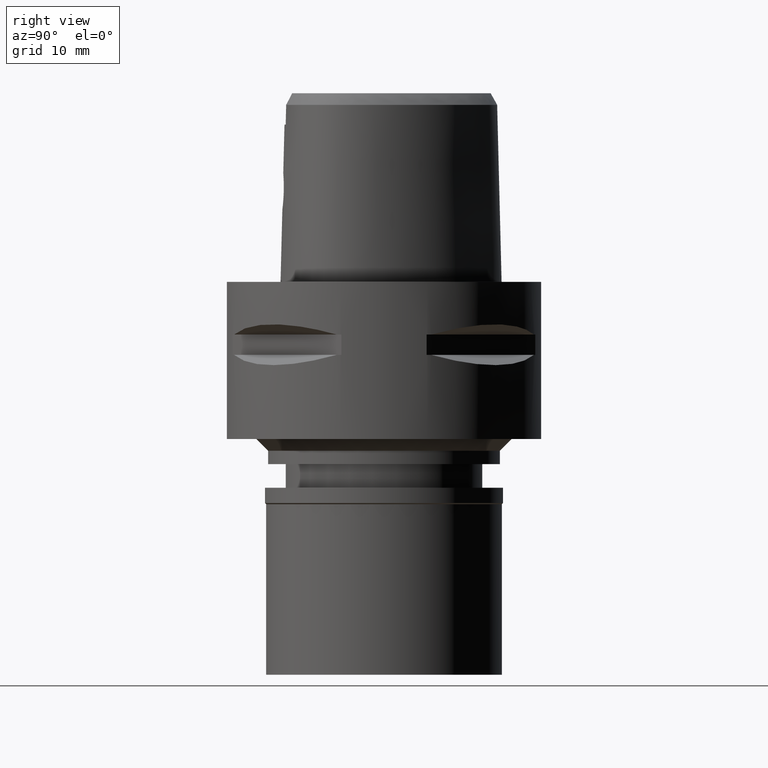
[diagram: clean part render]
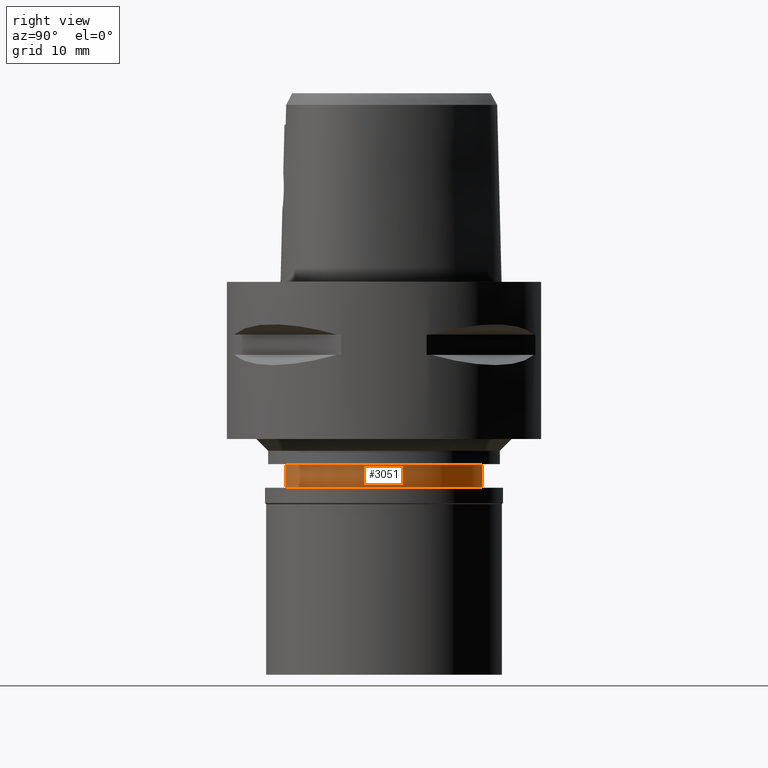
[diagram: same view with one face highlighted and labeled with its STEP entity id]
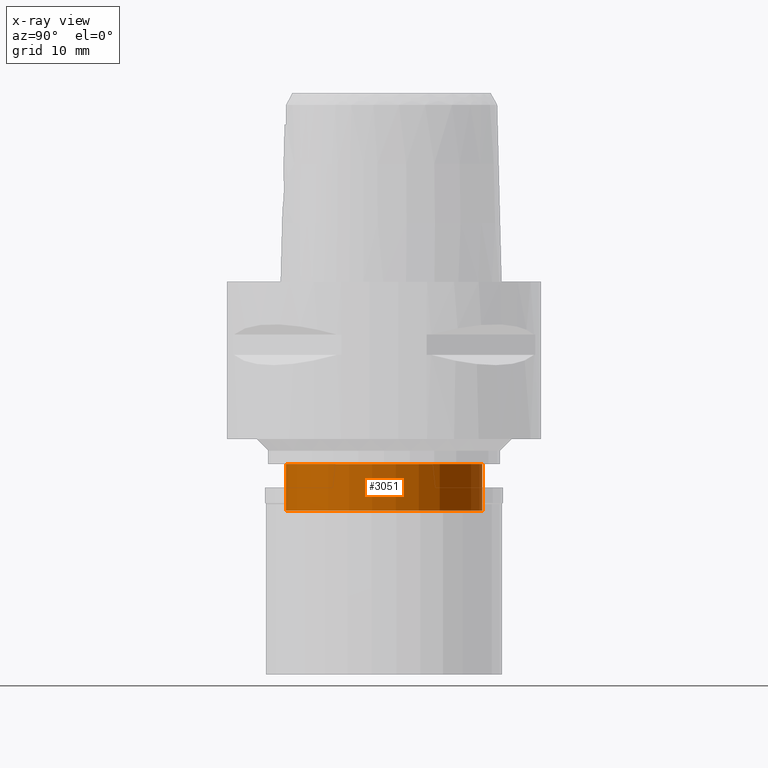
[diagram: x-ray of the same camera — body ghosted, the highlighted face saturated]
A machine part, right view. The second image highlights one B-rep face of the part: STEP entity #3051.
The next image is the same camera in x-ray: the body ghosted, the highlighted face saturated — about 0% of this face is hidden behind the body in this view.
In plain terms, the highlighted cylindrical surface (partial cylindrical patch) has radius 12.5 mm, axis along (0, 0, -1).
Its self-contained STEP definition (entity closure, byte-faithful):
#109 = CARTESIAN_POINT ( 'NONE',  ( 0.0000000000000000000, -12.50000000000000000, -23.19999999999999929 ) ) ;
#116 = CARTESIAN_POINT ( 'NONE',  ( 0.0000000000000000000, 1.249139735129999848E-14, -23.19999999999999929 ) ) ;
#156 = DIRECTION ( 'NONE',  ( 0.0000000000000000000, 0.0000000000000000000, -1.000000000000000000 ) ) ;
#245 = AXIS2_PLACEMENT_3D ( 'NONE', #4484, #2999, #911 ) ;
#374 = EDGE_LOOP ( 'NONE', ( #1378, #387, #3453, #4276 ) ) ;
#387 = ORIENTED_EDGE ( 'NONE', *, *, #2285, .T. ) ;
#559 = CARTESIAN_POINT ( 'NONE',  ( 0.0000000000000000000, 12.50000000000000000, -29.10000000000000142 ) ) ;
#880 = DIRECTION ( 'NONE',  ( 0.0000000000000000000, 1.000000000000000000, 0.0000000000000000000 ) ) ;
#911 = DIRECTION ( 'NONE',  ( 0.0000000000000000000, -1.000000000000000000, 0.0000000000000000000 ) ) ;
#1151 = CARTESIAN_POINT ( 'NONE',  ( 0.0000000000000000000, -12.50000000000000000, -29.10000000000000142 ) ) ;
#1264 = LINE ( 'NONE', #3441, #3547 ) ;
#1378 = ORIENTED_EDGE ( 'NONE', *, *, #3699, .T. ) ;
#1458 = CIRCLE ( 'NONE', #1833, 12.50000000000000000 ) ;
#1757 = EDGE_CURVE ( 'NONE', #4190, #2642, #1264, .T. ) ;
#1833 = AXIS2_PLACEMENT_3D ( 'NONE', #2073, #4651, #2092 ) ;
#1952 = LINE ( 'NONE', #109, #2609 ) ;
#2073 = CARTESIAN_POINT ( 'NONE',  ( 0.0000000000000000000, 1.249139735129999848E-14, -29.10000000000000142 ) ) ;
#2092 = DIRECTION ( 'NONE',  ( 0.0000000000000000000, -1.000000000000000000, 0.0000000000000000000 ) ) ;
#2265 = DIRECTION ( 'NONE',  ( 0.0000000000000000000, 0.0000000000000000000, -1.000000000000000000 ) ) ;
#2281 = FACE_OUTER_BOUND ( 'NONE', #374, .T. ) ;
#2285 = EDGE_CURVE ( 'NONE', #3365, #4302, #1952, .T. ) ;
#2609 = VECTOR ( 'NONE', #156, 1000.000000000000000 ) ;
#2642 = VERTEX_POINT ( 'NONE', #559 ) ;
#2716 = CYLINDRICAL_SURFACE ( 'NONE', #245, 12.50000000000000000 ) ;
#2724 = AXIS2_PLACEMENT_3D ( 'NONE', #116, #4122, #880 ) ;
#2926 = CARTESIAN_POINT ( 'NONE',  ( 0.0000000000000000000, 12.50000000000000000, -23.19999999999999929 ) ) ;
#2999 = DIRECTION ( 'NONE',  ( 0.0000000000000000000, 0.0000000000000000000, -1.000000000000000000 ) ) ;
#3051 = ADVANCED_FACE ( 'NONE', ( #2281 ), #2716, .T. ) ;
#3109 = CIRCLE ( 'NONE', #2724, 12.50000000000000000 ) ;
#3221 = EDGE_CURVE ( 'NONE', #4302, #2642, #1458, .T. ) ;
#3365 = VERTEX_POINT ( 'NONE', #3648 ) ;
#3441 = CARTESIAN_POINT ( 'NONE',  ( 0.0000000000000000000, 12.50000000000000000, -23.19999999999999929 ) ) ;
#3453 = ORIENTED_EDGE ( 'NONE', *, *, #3221, .T. ) ;
#3547 = VECTOR ( 'NONE', #2265, 1000.000000000000000 ) ;
#3648 = CARTESIAN_POINT ( 'NONE',  ( 0.0000000000000000000, -12.50000000000000000, -23.19999999999999929 ) ) ;
#3699 = EDGE_CURVE ( 'NONE', #4190, #3365, #3109, .T. ) ;
#4122 = DIRECTION ( 'NONE',  ( 0.0000000000000000000, 0.0000000000000000000, -1.000000000000000000 ) ) ;
#4190 = VERTEX_POINT ( 'NONE', #2926 ) ;
#4276 = ORIENTED_EDGE ( 'NONE', *, *, #1757, .F. ) ;
#4302 = VERTEX_POINT ( 'NONE', #1151 ) ;
#4484 = CARTESIAN_POINT ( 'NONE',  ( 0.0000000000000000000, 1.249139735129999848E-14, 2.000000000000000000 ) ) ;
#4651 = DIRECTION ( 'NONE',  ( 0.0000000000000000000, 0.0000000000000000000, 1.000000000000000000 ) ) ;